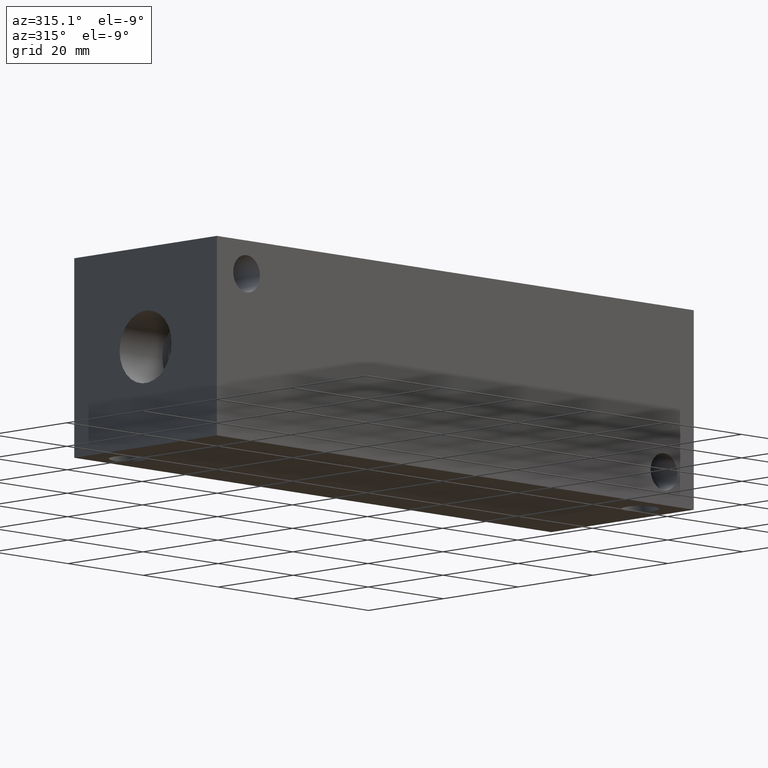
[diagram: clean part render]
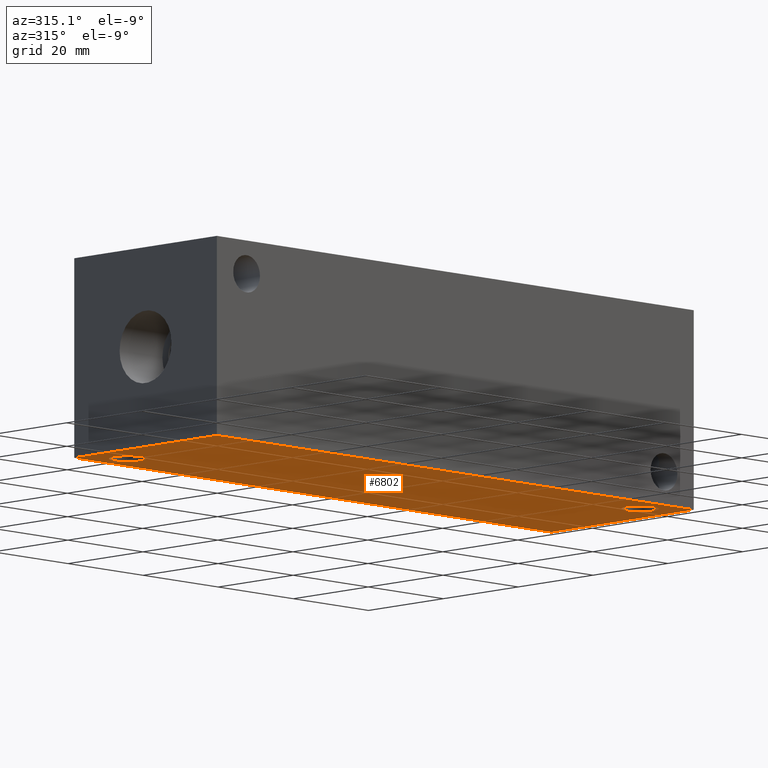
[diagram: same view with one face highlighted and labeled with its STEP entity id]
A machine part, auxiliary view. The second image highlights one B-rep face of the part: STEP entity #6802.
In plain terms, the highlighted planar face has unit normal (0, 0, 1).
Its self-contained STEP definition (entity closure, byte-faithful):
#61=CIRCLE('',#7051,3.5687);
#62=CIRCLE('',#7053,3.5687);
#136=FACE_BOUND('',#1082,.T.);
#137=FACE_BOUND('',#1083,.T.);
#351=PLANE('',#7108);
#694=FACE_OUTER_BOUND('',#1081,.T.);
#1081=EDGE_LOOP('',(#6047,#6048,#6049,#6050));
#1082=EDGE_LOOP('',(#6051));
#1083=EDGE_LOOP('',(#6052));
#1742=LINE('',#11627,#2408);
#1745=LINE('',#11632,#2411);
#1747=LINE('',#11636,#2413);
#1749=LINE('',#11639,#2415);
#2408=VECTOR('',#8343,10.);
#2411=VECTOR('',#8348,10.);
#2413=VECTOR('',#8352,10.);
#2415=VECTOR('',#8356,10.);
#3214=VERTEX_POINT('',#11519);
#3215=VERTEX_POINT('',#11523);
#3250=VERTEX_POINT('',#11625);
#3251=VERTEX_POINT('',#11626);
#3252=VERTEX_POINT('',#11631);
#3253=VERTEX_POINT('',#11635);
#4132=EDGE_CURVE('',#3214,#3214,#61,.T.);
#4134=EDGE_CURVE('',#3215,#3215,#62,.T.);
#4179=EDGE_CURVE('',#3250,#3251,#1742,.T.);
#4182=EDGE_CURVE('',#3252,#3250,#1745,.T.);
#4184=EDGE_CURVE('',#3253,#3252,#1747,.T.);
#4186=EDGE_CURVE('',#3251,#3253,#1749,.T.);
#6047=ORIENTED_EDGE('',*,*,#4186,.F.);
#6048=ORIENTED_EDGE('',*,*,#4179,.F.);
#6049=ORIENTED_EDGE('',*,*,#4182,.F.);
#6050=ORIENTED_EDGE('',*,*,#4184,.F.);
#6051=ORIENTED_EDGE('',*,*,#4132,.T.);
#6052=ORIENTED_EDGE('',*,*,#4134,.T.);
#6802=ADVANCED_FACE('',(#694,#136,#137),#351,.F.);
#7051=AXIS2_PLACEMENT_3D('',#11521,#8221,#8222);
#7053=AXIS2_PLACEMENT_3D('',#11525,#8226,#8227);
#7108=AXIS2_PLACEMENT_3D('',#11641,#8359,#8360);
#8221=DIRECTION('center_axis',(0.,0.,1.));
#8222=DIRECTION('ref_axis',(1.,0.,0.));
#8226=DIRECTION('center_axis',(0.,0.,1.));
#8227=DIRECTION('ref_axis',(1.,0.,0.));
#8343=DIRECTION('',(0.,-1.,0.));
#8348=DIRECTION('',(-1.,0.,0.));
#8352=DIRECTION('',(0.,1.,0.));
#8356=DIRECTION('',(1.,0.,0.));
#8359=DIRECTION('center_axis',(0.,0.,1.));
#8360=DIRECTION('ref_axis',(1.,0.,0.));
#11519=CARTESIAN_POINT('',(115.5065,6.35,0.));
#11521=CARTESIAN_POINT('Origin',(119.0752,6.35,0.));
#11523=CARTESIAN_POINT('',(4.3561,31.75,0.));
#11525=CARTESIAN_POINT('Origin',(7.9248,31.75,0.));
#11625=CARTESIAN_POINT('',(0.,38.1,0.));
#11626=CARTESIAN_POINT('',(0.,0.,0.));
#11627=CARTESIAN_POINT('',(0.,38.1,0.));
#11631=CARTESIAN_POINT('',(127.,38.1,0.));
#11632=CARTESIAN_POINT('',(127.,38.1,0.));
#11635=CARTESIAN_POINT('',(127.,0.,0.));
#11636=CARTESIAN_POINT('',(127.,0.,0.));
#11639=CARTESIAN_POINT('',(0.,0.,0.));
#11641=CARTESIAN_POINT('Origin',(63.5,19.05,0.));